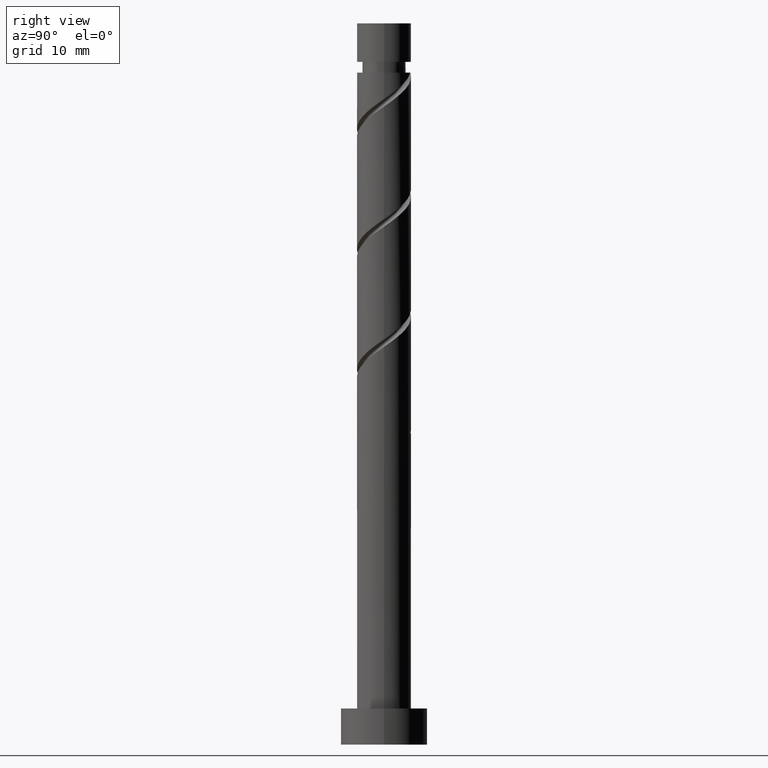
[diagram: clean part render]
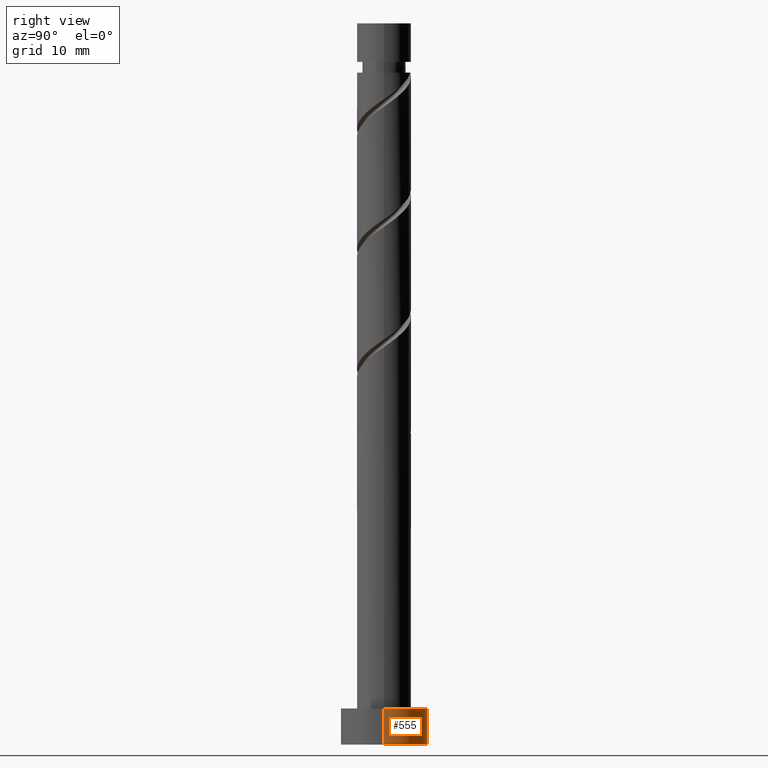
[diagram: same view with one face highlighted and labeled with its STEP entity id]
A machine part, right view. The second image highlights one B-rep face of the part: STEP entity #555.
In plain terms, the highlighted cylindrical surface (partial cylindrical patch) has radius 6 mm, axis along (-0, -0, -1).
Its self-contained STEP definition (entity closure, byte-faithful):
#8 = CARTESIAN_POINT ( 'NONE',  ( 6.000000000000000888, 7.347880794884120722E-16, 5.000000000000000000 ) ) ;
#14 = CARTESIAN_POINT ( 'NONE',  ( 0.000000000000000000, 0.000000000000000000, 5.000000000000000000 ) ) ;
#85 = EDGE_CURVE ( 'NONE', #1339, #738, #1280, .T. ) ;
#133 = LINE ( 'NONE', #1386, #301 ) ;
#198 = CARTESIAN_POINT ( 'NONE',  ( 0.000000000000000000, 0.000000000000000000, 0.000000000000000000 ) ) ;
#301 = VECTOR ( 'NONE', #681, 1000.000000000000000 ) ;
#305 = CARTESIAN_POINT ( 'NONE',  ( -6.000000000000000888, 0.000000000000000000, 0.000000000000000000 ) ) ;
#384 = VERTEX_POINT ( 'NONE', #305 ) ;
#454 = DIRECTION ( 'NONE',  ( 0.000000000000000000, 0.000000000000000000, 1.000000000000000000 ) ) ;
#555 = ADVANCED_FACE ( 'NONE', ( #803 ), #1154, .T. ) ;
#559 = DIRECTION ( 'NONE',  ( -1.000000000000000000, 0.000000000000000000, 0.000000000000000000 ) ) ;
#585 = CARTESIAN_POINT ( 'NONE',  ( 6.000000000000000888, 7.347880794884120722E-16, 0.000000000000000000 ) ) ;
#607 = AXIS2_PLACEMENT_3D ( 'NONE', #1378, #454, #671 ) ;
#660 = ORIENTED_EDGE ( 'NONE', *, *, #1258, .T. ) ;
#671 = DIRECTION ( 'NONE',  ( 1.000000000000000000, 0.000000000000000000, 0.000000000000000000 ) ) ;
#674 = AXIS2_PLACEMENT_3D ( 'NONE', #198, #1310, #1107 ) ;
#678 = VECTOR ( 'NONE', #1151, 1000.000000000000000 ) ;
#681 = DIRECTION ( 'NONE',  ( -0.000000000000000000, -0.000000000000000000, -1.000000000000000000 ) ) ;
#688 = ORIENTED_EDGE ( 'NONE', *, *, #830, .T. ) ;
#719 = ORIENTED_EDGE ( 'NONE', *, *, #1278, .F. ) ;
#733 = AXIS2_PLACEMENT_3D ( 'NONE', #14, #795, #559 ) ;
#738 = VERTEX_POINT ( 'NONE', #1274 ) ;
#789 = LINE ( 'NONE', #1141, #678 ) ;
#795 = DIRECTION ( 'NONE',  ( -0.000000000000000000, -0.000000000000000000, -1.000000000000000000 ) ) ;
#803 = FACE_OUTER_BOUND ( 'NONE', #1098, .T. ) ;
#830 = EDGE_CURVE ( 'NONE', #1256, #384, #1104, .T. ) ;
#1000 = ORIENTED_EDGE ( 'NONE', *, *, #85, .F. ) ;
#1098 = EDGE_LOOP ( 'NONE', ( #1000, #660, #688, #719 ) ) ;
#1104 = CIRCLE ( 'NONE', #674, 6.000000000000000888 ) ;
#1107 = DIRECTION ( 'NONE',  ( 1.000000000000000000, 0.000000000000000000, 0.000000000000000000 ) ) ;
#1141 = CARTESIAN_POINT ( 'NONE',  ( -6.000000000000000888, 0.000000000000000000, 5.000000000000000000 ) ) ;
#1151 = DIRECTION ( 'NONE',  ( -0.000000000000000000, -0.000000000000000000, -1.000000000000000000 ) ) ;
#1154 = CYLINDRICAL_SURFACE ( 'NONE', #733, 6.000000000000000888 ) ;
#1256 = VERTEX_POINT ( 'NONE', #585 ) ;
#1258 = EDGE_CURVE ( 'NONE', #1339, #1256, #133, .T. ) ;
#1274 = CARTESIAN_POINT ( 'NONE',  ( -6.000000000000000888, 0.000000000000000000, 5.000000000000000000 ) ) ;
#1278 = EDGE_CURVE ( 'NONE', #738, #384, #789, .T. ) ;
#1280 = CIRCLE ( 'NONE', #607, 6.000000000000000888 ) ;
#1310 = DIRECTION ( 'NONE',  ( 0.000000000000000000, 0.000000000000000000, 1.000000000000000000 ) ) ;
#1339 = VERTEX_POINT ( 'NONE', #8 ) ;
#1378 = CARTESIAN_POINT ( 'NONE',  ( 0.000000000000000000, 0.000000000000000000, 5.000000000000000000 ) ) ;
#1386 = CARTESIAN_POINT ( 'NONE',  ( 6.000000000000000888, 7.347880794884120722E-16, 5.000000000000000000 ) ) ;